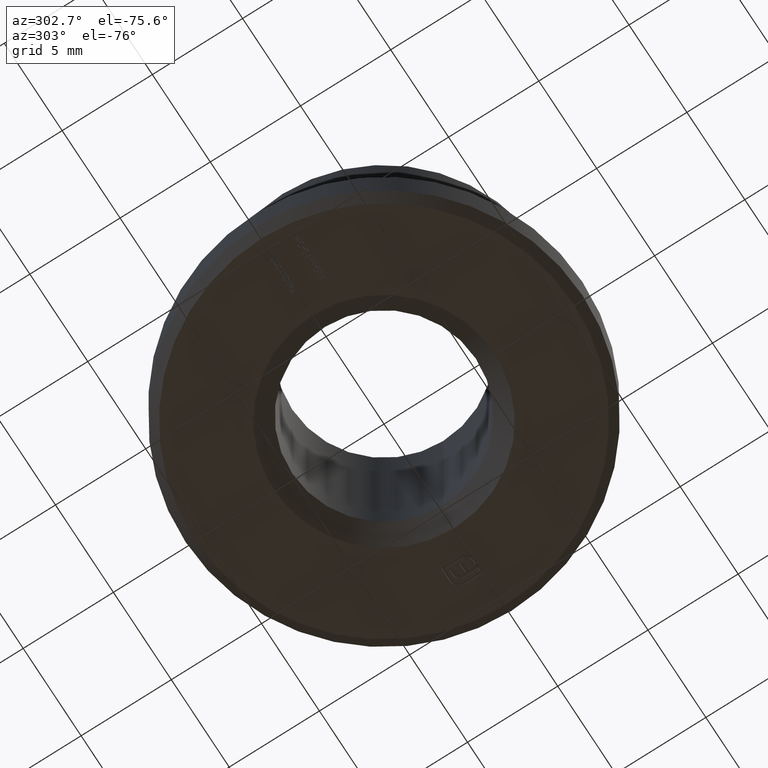
[diagram: clean part render]
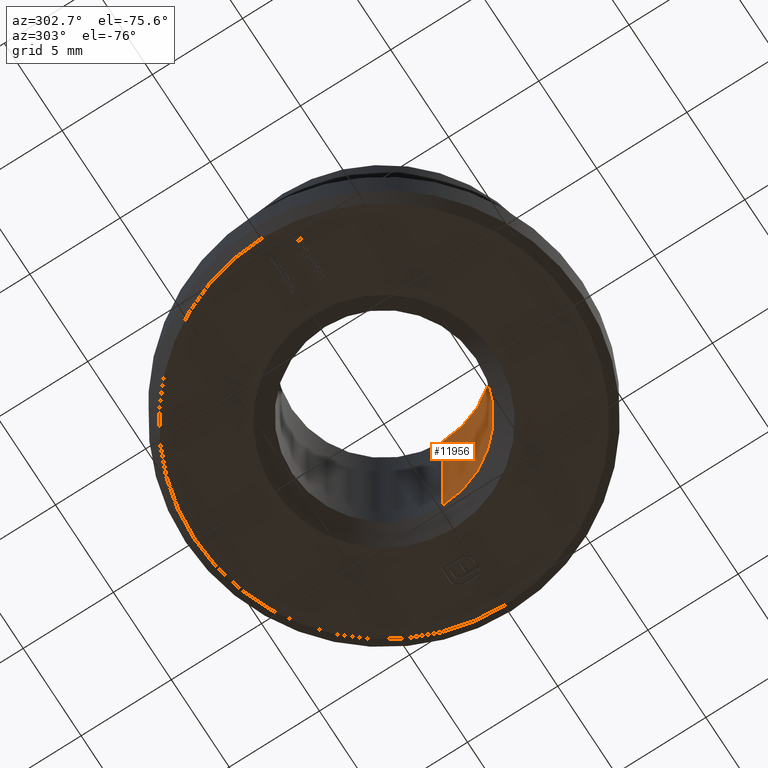
[diagram: same view with one face highlighted and labeled with its STEP entity id]
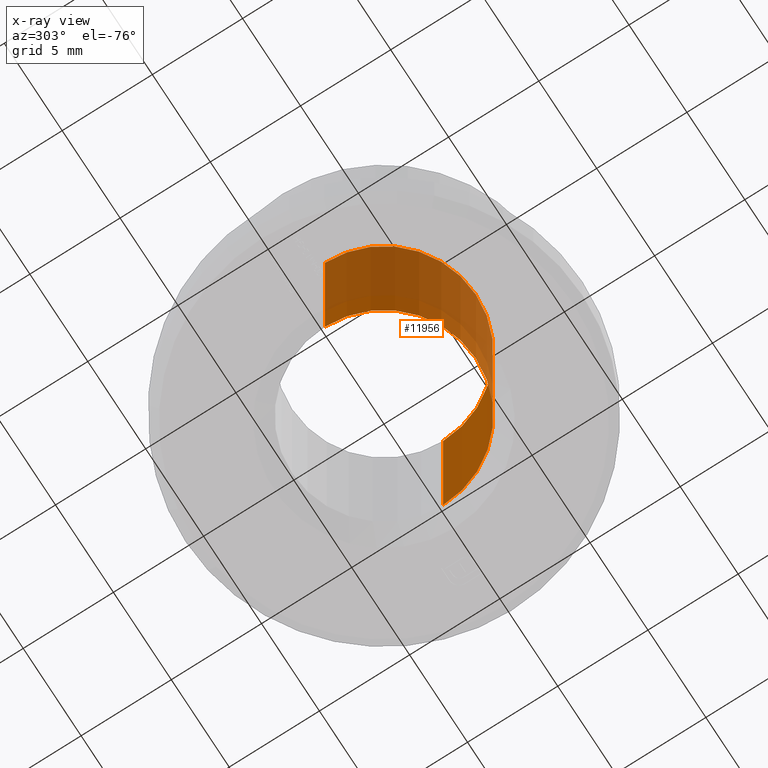
[diagram: x-ray of the same camera — body ghosted, the highlighted face saturated]
A machine part, auxiliary view. The second image highlights one B-rep face of the part: STEP entity #11956.
The next image is the same camera in x-ray: the body ghosted, the highlighted face saturated — about 59% of this face is hidden behind the body in this view.
In plain terms, the highlighted cylindrical surface (partial cylindrical patch) has radius 5.1 mm, axis along (-0, -0, 1).
Its self-contained STEP definition (entity closure, byte-faithful):
#50 = ORIENTED_EDGE ( 'NONE', *, *, #3964, .T. ) ;
#189 = CARTESIAN_POINT ( 'NONE',  ( 0.000000000000000000, 0.000000000000000000, -5.999999999999993783 ) ) ;
#238 = FACE_OUTER_BOUND ( 'NONE', #9600, .T. ) ;
#418 = VECTOR ( 'NONE', #11229, 1000.000000000000000 ) ;
#1787 = VERTEX_POINT ( 'NONE', #6089 ) ;
#2005 = CIRCLE ( 'NONE', #4345, 5.099999999999991651 ) ;
#2738 = DIRECTION ( 'NONE',  ( 0.000000000000000000, 0.000000000000000000, 1.000000000000000000 ) ) ;
#3190 = CARTESIAN_POINT ( 'NONE',  ( -5.099999999999991651, 6.245698675651490978E-16, 7.000000000000000000 ) ) ;
#3407 = AXIS2_PLACEMENT_3D ( 'NONE', #8826, #2738, #10944 ) ;
#3734 = VERTEX_POINT ( 'NONE', #5579 ) ;
#3866 = ORIENTED_EDGE ( 'NONE', *, *, #7052, .T. ) ;
#3964 = EDGE_CURVE ( 'NONE', #11426, #5583, #9227, .T. ) ;
#4044 = DIRECTION ( 'NONE',  ( -0.000000000000000000, -0.000000000000000000, 1.000000000000000000 ) ) ;
#4345 = AXIS2_PLACEMENT_3D ( 'NONE', #189, #4369, #9768 ) ;
#4369 = DIRECTION ( 'NONE',  ( -0.000000000000000000, -0.000000000000000000, -1.000000000000000000 ) ) ;
#5038 = EDGE_CURVE ( 'NONE', #3734, #1787, #2005, .T. ) ;
#5476 = DIRECTION ( 'NONE',  ( -0.000000000000000000, -0.000000000000000000, 1.000000000000000000 ) ) ;
#5579 = CARTESIAN_POINT ( 'NONE',  ( 5.099999999999991651, 0.000000000000000000, -5.999999999999993783 ) ) ;
#5583 = VERTEX_POINT ( 'NONE', #12726 ) ;
#6060 = CYLINDRICAL_SURFACE ( 'NONE', #10008, 5.099999999999991651 ) ;
#6089 = CARTESIAN_POINT ( 'NONE',  ( -5.099999999999991651, 6.245698675651490978E-16, -5.999999999999993783 ) ) ;
#7052 = EDGE_CURVE ( 'NONE', #1787, #11426, #7261, .T. ) ;
#7261 = LINE ( 'NONE', #3190, #8074 ) ;
#7395 = DIRECTION ( 'NONE',  ( 1.000000000000000000, 0.000000000000000000, 0.000000000000000000 ) ) ;
#8074 = VECTOR ( 'NONE', #4044, 1000.000000000000000 ) ;
#8826 = CARTESIAN_POINT ( 'NONE',  ( 0.000000000000000000, 0.000000000000000000, 6.000000000000015099 ) ) ;
#9227 = CIRCLE ( 'NONE', #3407, 5.099999999999991651 ) ;
#9252 = CARTESIAN_POINT ( 'NONE',  ( -5.099999999999991651, 6.245698675651490978E-16, 6.000000000000015099 ) ) ;
#9600 = EDGE_LOOP ( 'NONE', ( #10901, #3866, #50, #12499 ) ) ;
#9768 = DIRECTION ( 'NONE',  ( 1.000000000000000000, 0.000000000000000000, 0.000000000000000000 ) ) ;
#9899 = EDGE_CURVE ( 'NONE', #3734, #5583, #12210, .T. ) ;
#10008 = AXIS2_PLACEMENT_3D ( 'NONE', #11623, #5476, #7395 ) ;
#10209 = CARTESIAN_POINT ( 'NONE',  ( 5.099999999999991651, 0.000000000000000000, 7.000000000000000000 ) ) ;
#10901 = ORIENTED_EDGE ( 'NONE', *, *, #5038, .T. ) ;
#10944 = DIRECTION ( 'NONE',  ( -1.000000000000000000, 0.000000000000000000, 0.000000000000000000 ) ) ;
#11229 = DIRECTION ( 'NONE',  ( -0.000000000000000000, -0.000000000000000000, 1.000000000000000000 ) ) ;
#11426 = VERTEX_POINT ( 'NONE', #9252 ) ;
#11623 = CARTESIAN_POINT ( 'NONE',  ( 0.000000000000000000, 0.000000000000000000, 7.000000000000000000 ) ) ;
#11956 = ADVANCED_FACE ( 'NONE', ( #238 ), #6060, .F. ) ;
#12210 = LINE ( 'NONE', #10209, #418 ) ;
#12499 = ORIENTED_EDGE ( 'NONE', *, *, #9899, .F. ) ;
#12726 = CARTESIAN_POINT ( 'NONE',  ( 5.099999999999991651, 0.000000000000000000, 6.000000000000015099 ) ) ;